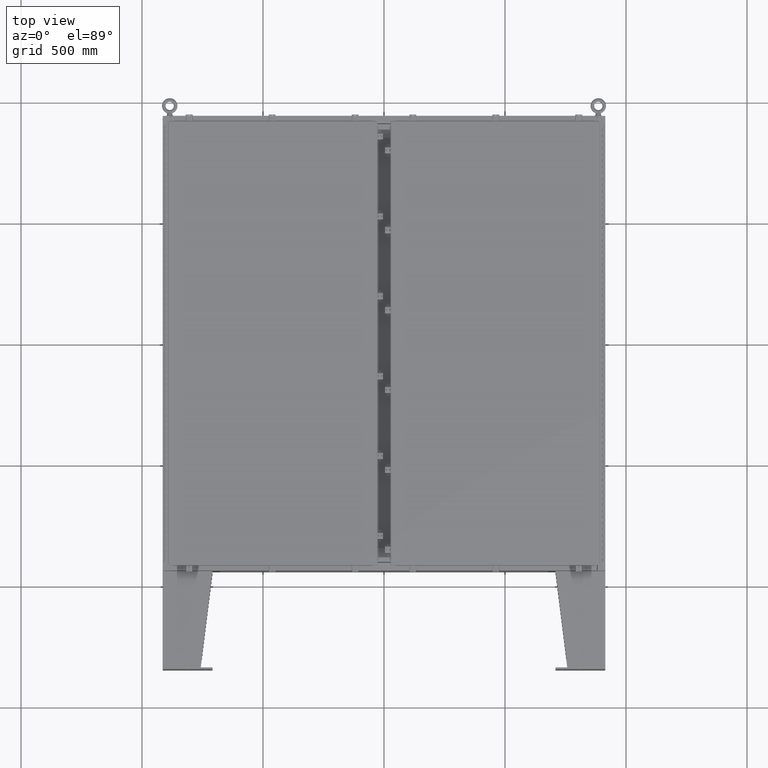
[diagram: clean part render]
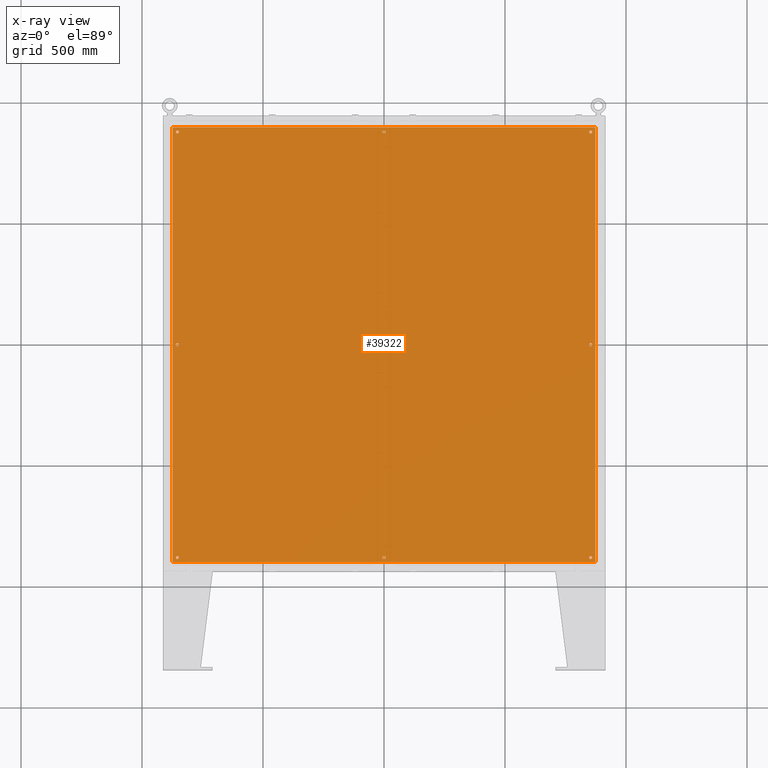
[diagram: x-ray — body ghosted, one internal face saturated and labeled with its STEP entity id]
A machine part, top view, then the same camera in x-ray: the body is ghosted and one INTERNAL B-rep face — a face not visible from any outside direction — is saturated and labeled: STEP entity #39322.
In plain terms, the highlighted planar face has unit normal (0, 0, -1).
Its self-contained STEP definition (entity closure, byte-faithful):
#208 = EDGE_CURVE ( 'NONE', #21961, #17737, #18742, .T. ) ;
#354 = ORIENTED_EDGE ( 'NONE', *, *, #20523, .F. ) ;
#577 = CARTESIAN_POINT ( 'NONE',  ( -33.37500000000000700, 34.62500000000000000, -0.1039999999999999800 ) ) ;
#735 = DIRECTION ( 'NONE',  ( -1.000000000000000000, 0.0000000000000000000, 0.0000000000000000000 ) ) ;
#891 = CIRCLE ( 'NONE', #71580, 0.2499999999999987000 ) ;
#1317 = EDGE_LOOP ( 'NONE', ( #77004, #78776 ) ) ;
#1796 = FACE_OUTER_BOUND ( 'NONE', #46152, .T. ) ;
#2316 = DIRECTION ( 'NONE',  ( -0.0000000000000000000, -0.0000000000000000000, 1.000000000000000000 ) ) ;
#2471 = EDGE_CURVE ( 'NONE', #64639, #55341, #34344, .T. ) ;
#2712 = CARTESIAN_POINT ( 'NONE',  ( -33.87500000000000700, 34.62500000000000000, -0.1039999999999999800 ) ) ;
#3001 = DIRECTION ( 'NONE',  ( -1.000000000000000000, 0.0000000000000000000, 0.0000000000000000000 ) ) ;
#3138 = AXIS2_PLACEMENT_3D ( 'NONE', #22465, #22456, #22284 ) ;
#3735 = FACE_BOUND ( 'NONE', #75389, .T. ) ;
#4200 = EDGE_LOOP ( 'NONE', ( #46967, #50359 ) ) ;
#4429 = DIRECTION ( 'NONE',  ( -0.0000000000000000000, -0.0000000000000000000, 1.000000000000000000 ) ) ;
#5235 = DIRECTION ( 'NONE',  ( -1.000000000000000000, 0.0000000000000000000, 0.0000000000000000000 ) ) ;
#5284 = EDGE_CURVE ( 'NONE', #39963, #58293, #891, .T. ) ;
#5312 = CARTESIAN_POINT ( 'NONE',  ( 0.0000000000000000000, -34.62500000000000000, -0.1039999999999999800 ) ) ;
#5560 = EDGE_LOOP ( 'NONE', ( #69301, #76771 ) ) ;
#6609 = LINE ( 'NONE', #81347, #71872 ) ;
#6762 = ORIENTED_EDGE ( 'NONE', *, *, #79810, .F. ) ;
#6900 = CIRCLE ( 'NONE', #63792, 0.2499999999999987000 ) ;
#7075 = EDGE_CURVE ( 'NONE', #58293, #39963, #7923, .T. ) ;
#7366 = DIRECTION ( 'NONE',  ( -0.0000000000000000000, -0.0000000000000000000, 1.000000000000000000 ) ) ;
#7923 = CIRCLE ( 'NONE', #54652, 0.2499999999999987000 ) ;
#9135 = DIRECTION ( 'NONE',  ( -1.000000000000000000, 0.0000000000000000000, 0.0000000000000000000 ) ) ;
#9580 = EDGE_LOOP ( 'NONE', ( #80759, #78821 ) ) ;
#10069 = CARTESIAN_POINT ( 'NONE',  ( -33.87500000000000700, -34.62500000000000000, -0.1039999999999999800 ) ) ;
#12371 = EDGE_CURVE ( 'NONE', #42562, #59717, #63499, .T. ) ;
#13411 = CARTESIAN_POINT ( 'NONE',  ( -33.87499999999999300, 1.886012919849846800E-016, -0.1039999999999999800 ) ) ;
#14337 = AXIS2_PLACEMENT_3D ( 'NONE', #16916, #60975, #23211 ) ;
#14512 = CARTESIAN_POINT ( 'NONE',  ( 33.62500000000002100, -34.62499999999998600, -0.1039999999999999800 ) ) ;
#14934 = CARTESIAN_POINT ( 'NONE',  ( 33.62500000000000700, 8.393734846272251100E-015, -0.1039999999999999800 ) ) ;
#15060 = DIRECTION ( 'NONE',  ( -0.0000000000000000000, -0.0000000000000000000, 1.000000000000000000 ) ) ;
#15227 = LINE ( 'NONE', #42353, #61578 ) ;
#16406 = VECTOR ( 'NONE', #18542, 39.37007874015748100 ) ;
#16648 = DIRECTION ( 'NONE',  ( -0.0000000000000000000, -0.0000000000000000000, 1.000000000000000000 ) ) ;
#16916 = CARTESIAN_POINT ( 'NONE',  ( 33.62500000000000700, 34.62500000000000700, -0.1039999999999999800 ) ) ;
#16991 = EDGE_LOOP ( 'NONE', ( #49481, #33829 ) ) ;
#17171 = CARTESIAN_POINT ( 'NONE',  ( 0.0000000000000000000, -34.62500000000000000, -0.1039999999999999800 ) ) ;
#17737 = VERTEX_POINT ( 'NONE', #2712 ) ;
#18029 = DIRECTION ( 'NONE',  ( -0.0000000000000000000, -0.0000000000000000000, 1.000000000000000000 ) ) ;
#18176 = DIRECTION ( 'NONE',  ( -1.000000000000000000, 0.0000000000000000000, 0.0000000000000000000 ) ) ;
#18542 = DIRECTION ( 'NONE',  ( 0.0000000000000000000, 1.000000000000000000, 0.0000000000000000000 ) ) ;
#18676 = CARTESIAN_POINT ( 'NONE',  ( 33.62500000000000700, 34.62500000000000700, -0.1039999999999999800 ) ) ;
#18719 = FACE_BOUND ( 'NONE', #1317, .T. ) ;
#18742 = CIRCLE ( 'NONE', #57401, 0.2499999999999987000 ) ;
#19832 = CARTESIAN_POINT ( 'NONE',  ( -0.2500000000000010000, -34.62500000000000000, -0.1039999999999999800 ) ) ;
#20301 = CARTESIAN_POINT ( 'NONE',  ( 33.62500000000000700, 8.393734846272251100E-015, -0.1039999999999999800 ) ) ;
#20523 = EDGE_CURVE ( 'NONE', #81267, #61210, #48053, .T. ) ;
#20678 = FACE_BOUND ( 'NONE', #49080, .T. ) ;
#20754 = CIRCLE ( 'NONE', #77806, 0.2499999999999998300 ) ;
#20915 = VERTEX_POINT ( 'NONE', #52317 ) ;
#21145 = CARTESIAN_POINT ( 'NONE',  ( 33.87500000000000700, 34.62500000000000700, -0.1039999999999999800 ) ) ;
#21268 = DIRECTION ( 'NONE',  ( -1.000000000000000000, 0.0000000000000000000, 0.0000000000000000000 ) ) ;
#21961 = VERTEX_POINT ( 'NONE', #577 ) ;
#22284 = DIRECTION ( 'NONE',  ( -1.000000000000000000, 0.0000000000000000000, 0.0000000000000000000 ) ) ;
#22456 = DIRECTION ( 'NONE',  ( -0.0000000000000000000, -0.0000000000000000000, 1.000000000000000000 ) ) ;
#22465 = CARTESIAN_POINT ( 'NONE',  ( -33.62500000000000700, -34.62500000000000000, -0.1039999999999999800 ) ) ;
#23211 = DIRECTION ( 'NONE',  ( -1.000000000000000000, 0.0000000000000000000, 0.0000000000000000000 ) ) ;
#24942 = DIRECTION ( 'NONE',  ( -1.000000000000000000, 0.0000000000000000000, 0.0000000000000000000 ) ) ;
#25001 = CIRCLE ( 'NONE', #28076, 0.2499999999999987000 ) ;
#25089 = VERTEX_POINT ( 'NONE', #13411 ) ;
#26612 = DIRECTION ( 'NONE',  ( -1.000000000000000000, 0.0000000000000000000, 0.0000000000000000000 ) ) ;
#26651 = DIRECTION ( 'NONE',  ( -0.0000000000000000000, -0.0000000000000000000, 1.000000000000000000 ) ) ;
#27597 = CIRCLE ( 'NONE', #38256, 0.2499999999999987000 ) ;
#28076 = AXIS2_PLACEMENT_3D ( 'NONE', #20301, #64451, #26612 ) ;
#28100 = AXIS2_PLACEMENT_3D ( 'NONE', #80800, #43105, #5235 ) ;
#30215 = CARTESIAN_POINT ( 'NONE',  ( 33.62500000000002100, -34.62499999999998600, -0.1039999999999999800 ) ) ;
#30489 = ORIENTED_EDGE ( 'NONE', *, *, #73545, .T. ) ;
#30655 = ORIENTED_EDGE ( 'NONE', *, *, #59205, .T. ) ;
#31070 = ORIENTED_EDGE ( 'NONE', *, *, #80066, .T. ) ;
#32063 = EDGE_LOOP ( 'NONE', ( #30489, #31070 ) ) ;
#32077 = CARTESIAN_POINT ( 'NONE',  ( 33.37500000000002800, -34.62499999999998600, -0.1039999999999999800 ) ) ;
#32216 = EDGE_CURVE ( 'NONE', #59717, #42562, #71720, .T. ) ;
#32528 = EDGE_CURVE ( 'NONE', #25089, #70924, #39050, .T. ) ;
#33559 = AXIS2_PLACEMENT_3D ( 'NONE', #14934, #58971, #21268 ) ;
#33829 = ORIENTED_EDGE ( 'NONE', *, *, #5284, .T. ) ;
#34344 = CIRCLE ( 'NONE', #3138, 0.2499999999999987000 ) ;
#35193 = CIRCLE ( 'NONE', #75131, 0.2499999999999987000 ) ;
#35421 = FACE_BOUND ( 'NONE', #4200, .T. ) ;
#37424 = FACE_BOUND ( 'NONE', #32063, .T. ) ;
#37601 = DIRECTION ( 'NONE',  ( -1.000000000000000000, 0.0000000000000000000, 0.0000000000000000000 ) ) ;
#37737 = DIRECTION ( 'NONE',  ( -0.0000000000000000000, -0.0000000000000000000, 1.000000000000000000 ) ) ;
#38256 = AXIS2_PLACEMENT_3D ( 'NONE', #18676, #62770, #24942 ) ;
#38604 = DIRECTION ( 'NONE',  ( -0.0000000000000000000, -0.0000000000000000000, 1.000000000000000000 ) ) ;
#38851 = CARTESIAN_POINT ( 'NONE',  ( -33.62500000000000000, 1.579851220063012300E-016, -0.1039999999999999800 ) ) ;
#39050 = CIRCLE ( 'NONE', #75185, 0.2499999999999987000 ) ;
#39172 = VERTEX_POINT ( 'NONE', #75139 ) ;
#39322 = ADVANCED_FACE ( 'NONE', ( #3735, #20678, #37424, #56076, #69040, #52181, #35421, #18719, #1796 ), #66421, .T. ) ;
#39585 = VERTEX_POINT ( 'NONE', #51402 ) ;
#39963 = VERTEX_POINT ( 'NONE', #32077 ) ;
#41182 = CIRCLE ( 'NONE', #52824, 0.2499999999999998300 ) ;
#41249 = VERTEX_POINT ( 'NONE', #78549 ) ;
#42321 = CARTESIAN_POINT ( 'NONE',  ( 0.0000000000000000000, 34.62500000000000000, -0.1039999999999999800 ) ) ;
#42353 = CARTESIAN_POINT ( 'NONE',  ( 34.50000000000000700, 35.38300000000000300, -0.1040000000000009400 ) ) ;
#42562 = VERTEX_POINT ( 'NONE', #74828 ) ;
#42900 = AXIS2_PLACEMENT_3D ( 'NONE', #17171, #7366, #37601 ) ;
#43105 = DIRECTION ( 'NONE',  ( -0.0000000000000000000, -0.0000000000000000000, 1.000000000000000000 ) ) ;
#43692 = EDGE_CURVE ( 'NONE', #70924, #25089, #6900, .T. ) ;
#44004 = CIRCLE ( 'NONE', #33559, 0.2499999999999987000 ) ;
#44429 = CARTESIAN_POINT ( 'NONE',  ( 34.38300000000001000, -35.38299999999999600, -0.1040000000000009400 ) ) ;
#44742 = CARTESIAN_POINT ( 'NONE',  ( -33.62500000000000700, 34.62500000000000000, -0.1039999999999999800 ) ) ;
#45095 = DIRECTION ( 'NONE',  ( 0.0000000000000000000, -1.000000000000000000, 0.0000000000000000000 ) ) ;
#46152 = EDGE_LOOP ( 'NONE', ( #52220, #354, #6762, #56085 ) ) ;
#46346 = EDGE_CURVE ( 'NONE', #81009, #56951, #74604, .T. ) ;
#46512 = EDGE_CURVE ( 'NONE', #65552, #39585, #79402, .T. ) ;
#46967 = ORIENTED_EDGE ( 'NONE', *, *, #57249, .T. ) ;
#47984 = DIRECTION ( 'NONE',  ( -1.000000000000000000, 0.0000000000000000000, 0.0000000000000000000 ) ) ;
#48053 = LINE ( 'NONE', #68666, #62928 ) ;
#48176 = AXIS2_PLACEMENT_3D ( 'NONE', #5312, #15060, #47984 ) ;
#48668 = DIRECTION ( 'NONE',  ( -1.000000000000000000, 0.0000000000000000000, 0.0000000000000000000 ) ) ;
#48804 = VERTEX_POINT ( 'NONE', #49006 ) ;
#49006 = CARTESIAN_POINT ( 'NONE',  ( 33.87500000000000700, 8.393734846272251100E-015, -0.1039999999999999800 ) ) ;
#49080 = EDGE_LOOP ( 'NONE', ( #56794, #30655 ) ) ;
#49481 = ORIENTED_EDGE ( 'NONE', *, *, #7075, .T. ) ;
#50359 = ORIENTED_EDGE ( 'NONE', *, *, #46346, .T. ) ;
#51402 = CARTESIAN_POINT ( 'NONE',  ( 34.38300000000001000, 35.38299999999998100, -0.1040000000000009400 ) ) ;
#52181 = FACE_BOUND ( 'NONE', #16991, .T. ) ;
#52220 = ORIENTED_EDGE ( 'NONE', *, *, #72691, .F. ) ;
#52317 = CARTESIAN_POINT ( 'NONE',  ( -0.2499999999999998300, 34.62500000000000000, -0.1039999999999999800 ) ) ;
#52824 = AXIS2_PLACEMENT_3D ( 'NONE', #76335, #38604, #735 ) ;
#53295 = CARTESIAN_POINT ( 'NONE',  ( 33.87500000000002100, -34.62499999999998600, -0.1039999999999999800 ) ) ;
#53712 = DIRECTION ( 'NONE',  ( -1.000000000000000000, 0.0000000000000000000, 0.0000000000000000000 ) ) ;
#54652 = AXIS2_PLACEMENT_3D ( 'NONE', #14512, #18029, #18176 ) ;
#55341 = VERTEX_POINT ( 'NONE', #10069 ) ;
#55460 = EDGE_CURVE ( 'NONE', #55341, #64639, #66408, .T. ) ;
#56076 = FACE_BOUND ( 'NONE', #5560, .T. ) ;
#56085 = ORIENTED_EDGE ( 'NONE', *, *, #46512, .F. ) ;
#56794 = ORIENTED_EDGE ( 'NONE', *, *, #57090, .T. ) ;
#56951 = VERTEX_POINT ( 'NONE', #21145 ) ;
#57090 = EDGE_CURVE ( 'NONE', #41249, #20915, #20754, .T. ) ;
#57249 = EDGE_CURVE ( 'NONE', #56951, #81009, #27597, .T. ) ;
#57401 = AXIS2_PLACEMENT_3D ( 'NONE', #44742, #70583, #9135 ) ;
#58293 = VERTEX_POINT ( 'NONE', #53295 ) ;
#58971 = DIRECTION ( 'NONE',  ( -0.0000000000000000000, -0.0000000000000000000, 1.000000000000000000 ) ) ;
#59205 = EDGE_CURVE ( 'NONE', #20915, #41249, #41182, .T. ) ;
#59717 = VERTEX_POINT ( 'NONE', #19832 ) ;
#59774 = EDGE_CURVE ( 'NONE', #17737, #21961, #35193, .T. ) ;
#60828 = AXIS2_PLACEMENT_3D ( 'NONE', #66498, #67499, #66132 ) ;
#60975 = DIRECTION ( 'NONE',  ( -0.0000000000000000000, -0.0000000000000000000, 1.000000000000000000 ) ) ;
#61210 = VERTEX_POINT ( 'NONE', #80528 ) ;
#61401 = DIRECTION ( 'NONE',  ( -1.000000000000000000, -0.0000000000000000000, -0.0000000000000000000 ) ) ;
#61578 = VECTOR ( 'NONE', #61401, 39.37007874015748100 ) ;
#62647 = CARTESIAN_POINT ( 'NONE',  ( 34.38300000000001000, -35.38299999999999600, -0.1040000000000009400 ) ) ;
#62770 = DIRECTION ( 'NONE',  ( -0.0000000000000000000, -0.0000000000000000000, 1.000000000000000000 ) ) ;
#62928 = VECTOR ( 'NONE', #45095, 39.37007874015748100 ) ;
#63499 = CIRCLE ( 'NONE', #48176, 0.2500000000000010000 ) ;
#63792 = AXIS2_PLACEMENT_3D ( 'NONE', #75502, #37737, #81711 ) ;
#64451 = DIRECTION ( 'NONE',  ( -0.0000000000000000000, -0.0000000000000000000, 1.000000000000000000 ) ) ;
#64487 = CARTESIAN_POINT ( 'NONE',  ( -33.62500000000000700, 34.62500000000000000, -0.1039999999999999800 ) ) ;
#64639 = VERTEX_POINT ( 'NONE', #79754 ) ;
#65552 = VERTEX_POINT ( 'NONE', #44429 ) ;
#65893 = CARTESIAN_POINT ( 'NONE',  ( -34.38299999999999600, 35.38299999999998100, -0.1039999999999921100 ) ) ;
#66132 = DIRECTION ( 'NONE',  ( -1.000000000000000000, 0.0000000000000000000, -0.0000000000000000000 ) ) ;
#66408 = CIRCLE ( 'NONE', #28100, 0.2499999999999987000 ) ;
#66421 = PLANE ( 'NONE',  #60828 ) ;
#66498 = CARTESIAN_POINT ( 'NONE',  ( 0.0000000000000000000, 0.0000000000000000000, -0.1039999999999999800 ) ) ;
#67499 = DIRECTION ( 'NONE',  ( 0.0000000000000000000, 0.0000000000000000000, -1.000000000000000000 ) ) ;
#68666 = CARTESIAN_POINT ( 'NONE',  ( -34.38299999999999600, 35.38299999999998100, -0.1039999999999921100 ) ) ;
#68801 = ORIENTED_EDGE ( 'NONE', *, *, #32216, .T. ) ;
#68851 = DIRECTION ( 'NONE',  ( 1.000000000000000000, -0.0000000000000000000, -0.0000000000000000000 ) ) ;
#69040 = FACE_BOUND ( 'NONE', #9580, .T. ) ;
#69301 = ORIENTED_EDGE ( 'NONE', *, *, #43692, .T. ) ;
#70583 = DIRECTION ( 'NONE',  ( -0.0000000000000000000, -0.0000000000000000000, 1.000000000000000000 ) ) ;
#70834 = DIRECTION ( 'NONE',  ( -1.000000000000000000, 0.0000000000000000000, 0.0000000000000000000 ) ) ;
#70924 = VERTEX_POINT ( 'NONE', #76778 ) ;
#70960 = CARTESIAN_POINT ( 'NONE',  ( 33.37500000000000700, 34.62500000000000700, -0.1039999999999999800 ) ) ;
#71580 = AXIS2_PLACEMENT_3D ( 'NONE', #30215, #16648, #3001 ) ;
#71720 = CIRCLE ( 'NONE', #42900, 0.2500000000000010000 ) ;
#71872 = VECTOR ( 'NONE', #68851, 39.37007874015748100 ) ;
#72691 = EDGE_CURVE ( 'NONE', #61210, #65552, #6609, .T. ) ;
#73177 = ORIENTED_EDGE ( 'NONE', *, *, #12371, .T. ) ;
#73545 = EDGE_CURVE ( 'NONE', #48804, #39172, #44004, .T. ) ;
#74604 = CIRCLE ( 'NONE', #14337, 0.2499999999999987000 ) ;
#74828 = CARTESIAN_POINT ( 'NONE',  ( 0.2500000000000010000, -34.62500000000000000, -0.1039999999999999800 ) ) ;
#75131 = AXIS2_PLACEMENT_3D ( 'NONE', #64487, #26651, #70834 ) ;
#75139 = CARTESIAN_POINT ( 'NONE',  ( 33.37500000000000700, 8.424351016250934900E-015, -0.1039999999999999800 ) ) ;
#75185 = AXIS2_PLACEMENT_3D ( 'NONE', #38851, #2316, #53712 ) ;
#75389 = EDGE_LOOP ( 'NONE', ( #73177, #68801 ) ) ;
#75502 = CARTESIAN_POINT ( 'NONE',  ( -33.62500000000000000, 1.579851220063012300E-016, -0.1039999999999999800 ) ) ;
#76335 = CARTESIAN_POINT ( 'NONE',  ( 0.0000000000000000000, 34.62500000000000000, -0.1039999999999999800 ) ) ;
#76771 = ORIENTED_EDGE ( 'NONE', *, *, #32528, .T. ) ;
#76778 = CARTESIAN_POINT ( 'NONE',  ( -33.37500000000000000, 1.579851220063012300E-016, -0.1039999999999999800 ) ) ;
#77004 = ORIENTED_EDGE ( 'NONE', *, *, #208, .T. ) ;
#77806 = AXIS2_PLACEMENT_3D ( 'NONE', #42321, #4429, #48668 ) ;
#78549 = CARTESIAN_POINT ( 'NONE',  ( 0.2499999999999998300, 34.62500000000000000, -0.1039999999999999800 ) ) ;
#78776 = ORIENTED_EDGE ( 'NONE', *, *, #59774, .T. ) ;
#78821 = ORIENTED_EDGE ( 'NONE', *, *, #55460, .T. ) ;
#79402 = LINE ( 'NONE', #62647, #16406 ) ;
#79754 = CARTESIAN_POINT ( 'NONE',  ( -33.37500000000000700, -34.62500000000000000, -0.1039999999999999800 ) ) ;
#79810 = EDGE_CURVE ( 'NONE', #39585, #81267, #15227, .T. ) ;
#80066 = EDGE_CURVE ( 'NONE', #39172, #48804, #25001, .T. ) ;
#80528 = CARTESIAN_POINT ( 'NONE',  ( -34.38299999999999600, -35.38300000000000300, -0.1040000000000009400 ) ) ;
#80759 = ORIENTED_EDGE ( 'NONE', *, *, #2471, .T. ) ;
#80800 = CARTESIAN_POINT ( 'NONE',  ( -33.62500000000000700, -34.62500000000000000, -0.1039999999999999800 ) ) ;
#81009 = VERTEX_POINT ( 'NONE', #70960 ) ;
#81267 = VERTEX_POINT ( 'NONE', #65893 ) ;
#81347 = CARTESIAN_POINT ( 'NONE',  ( -34.50000000000000000, -35.38300000000000300, -0.1040000000000009400 ) ) ;
#81711 = DIRECTION ( 'NONE',  ( -1.000000000000000000, 0.0000000000000000000, 0.0000000000000000000 ) ) ;